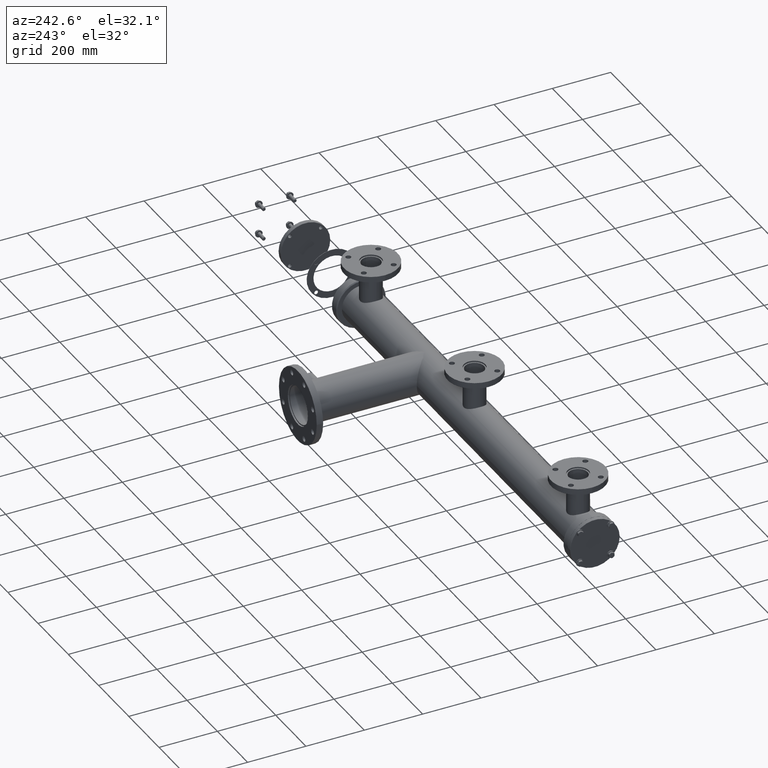
[diagram: clean part render]
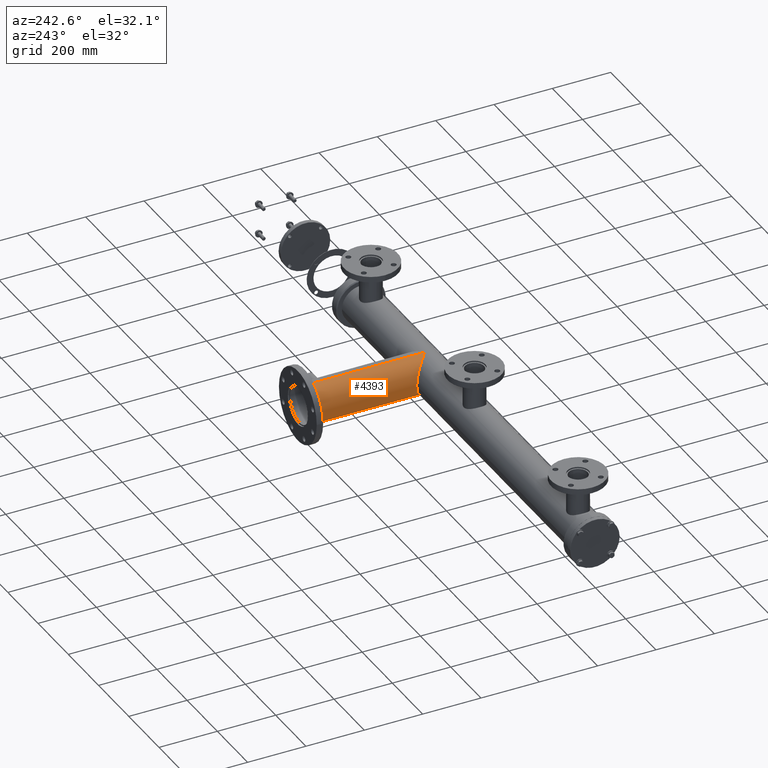
[diagram: same view with one face highlighted and labeled with its STEP entity id]
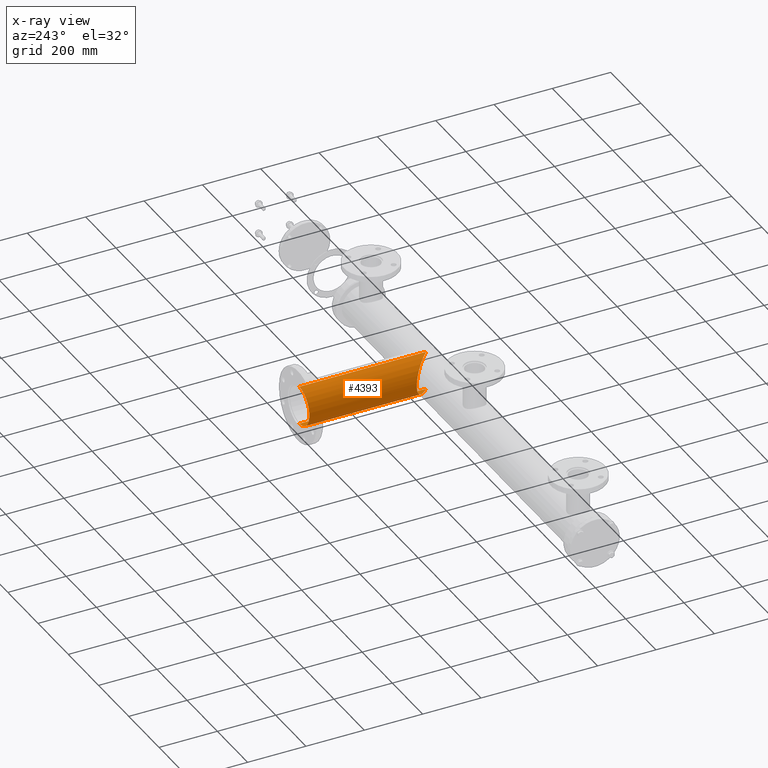
[diagram: x-ray of the same camera — body ghosted, the highlighted face saturated]
A machine part, auxiliary view. The second image highlights one B-rep face of the part: STEP entity #4393.
The next image is the same camera in x-ray: the body ghosted, the highlighted face saturated — about 0% of this face is hidden behind the body in this view.
In plain terms, the highlighted cylindrical surface (edge-blend (fillet) strip) has radius 66.5 mm, axis along (-0, -1, -0).
Its self-contained STEP definition (entity closure, byte-faithful):
#82 = CARTESIAN_POINT ( 'NONE',  ( 320.0000000000000568, 1.564393730959410799E-13, 66.50000000000000000 ) ) ;
#94 = CARTESIAN_POINT ( 'NONE',  ( 320.0000000000000568, 1.564393730959410799E-13, -66.50000000000000000 ) ) ;
#216 = DIRECTION ( 'NONE',  ( -1.000000000000000000, 0.000000000000000000, 0.000000000000000000 ) ) ;
#273 = CARTESIAN_POINT ( 'NONE',  ( 320.0000000000000568, 1.564393730959410799E-13, -66.50000000000000000 ) ) ;
#540 = FACE_OUTER_BOUND ( 'NONE', #4122, .T. ) ;
#542 =( BOUNDED_CURVE ( )  B_SPLINE_CURVE ( 3, ( #8715, #6330, #2367, #273 ),
 .UNSPECIFIED., .F., .T. ) 
 B_SPLINE_CURVE_WITH_KNOTS ( ( 4, 4 ),
 ( 3.141592653589793116, 4.712388980384689674 ),
 .UNSPECIFIED. ) 
 CURVE ( )  GEOMETRIC_REPRESENTATION_ITEM ( )  RATIONAL_B_SPLINE_CURVE ( ( 1.000000000000000000, 0.8047378541243649375, 0.8047378541243649375, 1.000000000000000000 ) ) 
 REPRESENTATION_ITEM ( '' )  );
#566 = CARTESIAN_POINT ( 'NONE',  ( 320.0000000000000000, 434.9999999999998863, -66.50000000000000000 ) ) ;
#981 = CARTESIAN_POINT ( 'NONE',  ( 320.0000000000000000, 434.9999999999998863, 66.50000000000000000 ) ) ;
#1115 = AXIS2_PLACEMENT_3D ( 'NONE', #8058, #7283, #216 ) ;
#2084 = VECTOR ( 'NONE', #6036, 1000.000000000000000 ) ;
#2226 = CARTESIAN_POINT ( 'NONE',  ( 320.0000000000000000, 434.9999999999998863, 66.50000000000000000 ) ) ;
#2367 = CARTESIAN_POINT ( 'NONE',  ( 281.0452018978107844, 38.95479810218933636, -66.49999999999998579 ) ) ;
#2640 = EDGE_CURVE ( 'NONE', #7367, #7044, #542, .T. ) ;
#2924 = ORIENTED_EDGE ( 'NONE', *, *, #3396, .F. ) ;
#2990 =( BOUNDED_CURVE ( )  B_SPLINE_CURVE ( 3, ( #82, #6422, #7922, #7198 ),
 .UNSPECIFIED., .F., .T. ) 
 B_SPLINE_CURVE_WITH_KNOTS ( ( 4, 4 ),
 ( 1.570796326794896558, 3.141592653589793116 ),
 .UNSPECIFIED. ) 
 CURVE ( )  GEOMETRIC_REPRESENTATION_ITEM ( )  RATIONAL_B_SPLINE_CURVE ( ( 1.000000000000000000, 0.8047378541243649375, 0.8047378541243649375, 1.000000000000000000 ) ) 
 REPRESENTATION_ITEM ( '' )  );
#3253 = VERTEX_POINT ( 'NONE', #8851 ) ;
#3396 = EDGE_CURVE ( 'NONE', #3658, #3253, #8324, .T. ) ;
#3658 = VERTEX_POINT ( 'NONE', #981 ) ;
#4122 = EDGE_LOOP ( 'NONE', ( #2924, #6957, #4550, #5549, #9744 ) ) ;
#4393 = ADVANCED_FACE ( 'NONE', ( #540 ), #8376, .T. ) ;
#4550 = ORIENTED_EDGE ( 'NONE', *, *, #8253, .T. ) ;
#4984 = VERTEX_POINT ( 'NONE', #566 ) ;
#5233 = DIRECTION ( 'NONE',  ( -0.000000000000000000, -1.000000000000000000, -0.000000000000000000 ) ) ;
#5407 = CIRCLE ( 'NONE', #1115, 66.50000000000000000 ) ;
#5440 = VECTOR ( 'NONE', #6200, 1000.000000000000000 ) ;
#5549 = ORIENTED_EDGE ( 'NONE', *, *, #2640, .F. ) ;
#6036 = DIRECTION ( 'NONE',  ( -0.000000000000000000, -1.000000000000000000, -0.000000000000000000 ) ) ;
#6052 = CARTESIAN_POINT ( 'NONE',  ( 320.0000000000000000, 434.9999999999998863, 0.000000000000000000 ) ) ;
#6161 = DIRECTION ( 'NONE',  ( 0.000000000000000000, 0.000000000000000000, -1.000000000000000000 ) ) ;
#6200 = DIRECTION ( 'NONE',  ( -0.000000000000000000, -1.000000000000000000, -0.000000000000000000 ) ) ;
#6330 = CARTESIAN_POINT ( 'NONE',  ( 253.5000000000000568, 66.50000000000014211, -38.95479810218917294 ) ) ;
#6422 = CARTESIAN_POINT ( 'NONE',  ( 281.0452018978107844, 38.95479810218931505, 66.49999999999998579 ) ) ;
#6957 = ORIENTED_EDGE ( 'NONE', *, *, #9495, .F. ) ;
#7044 = VERTEX_POINT ( 'NONE', #94 ) ;
#7198 = CARTESIAN_POINT ( 'NONE',  ( 253.5000000000000568, 66.50000000000012790, 0.000000000000000000 ) ) ;
#7283 = DIRECTION ( 'NONE',  ( 0.000000000000000000, 1.000000000000000000, 0.000000000000000000 ) ) ;
#7367 = VERTEX_POINT ( 'NONE', #9315 ) ;
#7922 = CARTESIAN_POINT ( 'NONE',  ( 253.5000000000000568, 66.50000000000014211, 38.95479810218918715 ) ) ;
#8058 = CARTESIAN_POINT ( 'NONE',  ( 320.0000000000000000, 434.9999999999998863, 0.000000000000000000 ) ) ;
#8136 = AXIS2_PLACEMENT_3D ( 'NONE', #6052, #5233, #6161 ) ;
#8253 = EDGE_CURVE ( 'NONE', #4984, #7044, #9344, .T. ) ;
#8324 = LINE ( 'NONE', #2226, #5440 ) ;
#8376 = CYLINDRICAL_SURFACE ( 'NONE', #8136, 66.50000000000000000 ) ;
#8418 = CARTESIAN_POINT ( 'NONE',  ( 320.0000000000000000, 434.9999999999998863, -66.50000000000000000 ) ) ;
#8715 = CARTESIAN_POINT ( 'NONE',  ( 253.5000000000000568, 66.50000000000012790, 0.000000000000000000 ) ) ;
#8851 = CARTESIAN_POINT ( 'NONE',  ( 320.0000000000000568, 1.564393730959410799E-13, 66.50000000000000000 ) ) ;
#9020 = EDGE_CURVE ( 'NONE', #3253, #7367, #2990, .T. ) ;
#9315 = CARTESIAN_POINT ( 'NONE',  ( 253.5000000000000568, 66.50000000000012790, 0.000000000000000000 ) ) ;
#9344 = LINE ( 'NONE', #8418, #2084 ) ;
#9495 = EDGE_CURVE ( 'NONE', #4984, #3658, #5407, .T. ) ;
#9744 = ORIENTED_EDGE ( 'NONE', *, *, #9020, .F. ) ;